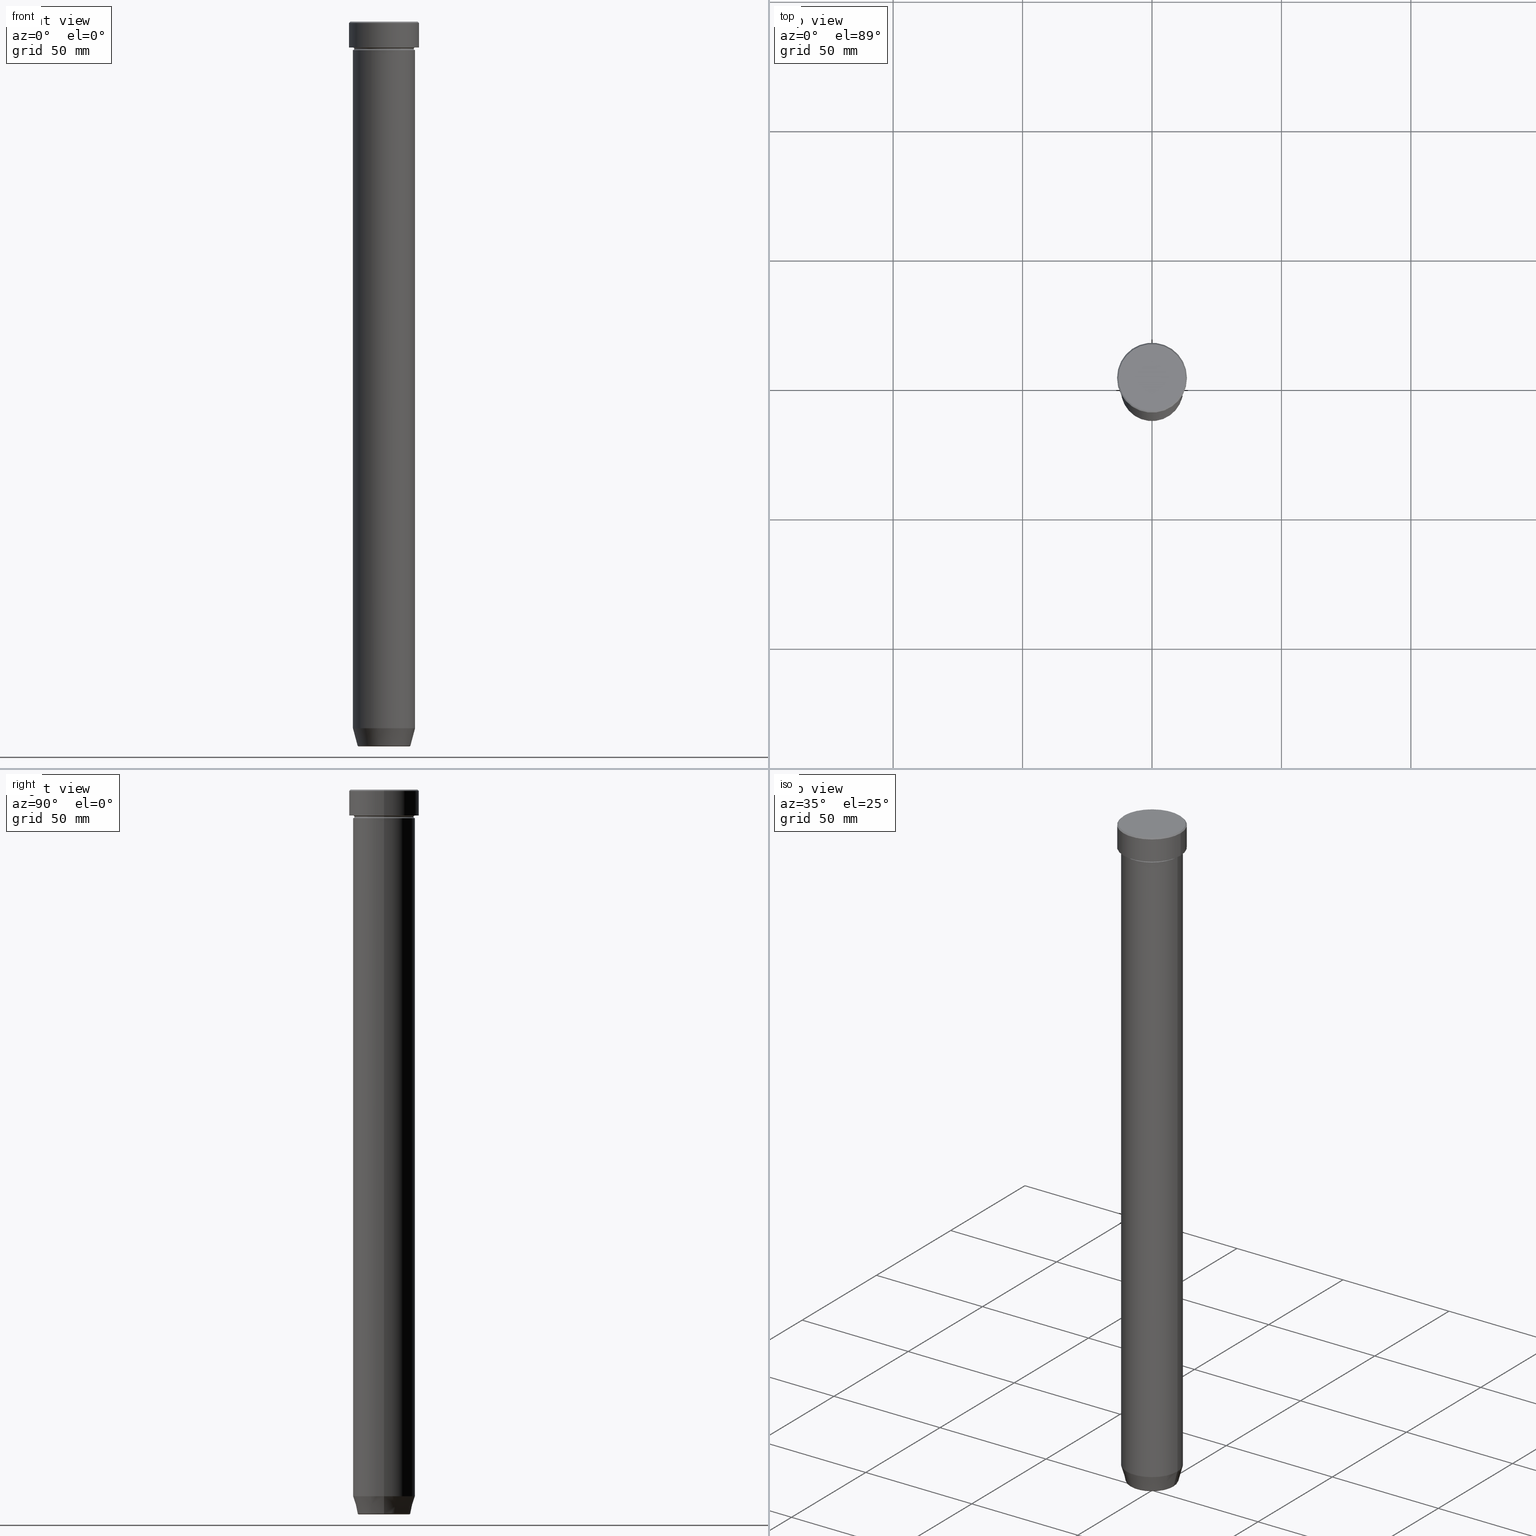
[diagram: canonical four-view strip — front | top / right | iso, engineering-drawing reading convention]
A machine part, canonical four-view strip (front | top / right | iso — engineering-drawing reading convention). The complete STEP part file that produces these views, byte-faithful:
ISO-10303-21;
HEADER;
FILE_DESCRIPTION (( 'STEP AP203' ),
    '1' );
FILE_NAME ('3b0b.STEP',
    '2024-01-02T17:40:30',
    ( '' ),
    ( '' ),
    'SwSTEP 2.0',
    'SolidWorks 2019',
    '' );
FILE_SCHEMA (( 'CONFIG_CONTROL_DESIGN' ));
ENDSEC;

DATA;
#1 = EDGE_LOOP ( 'NONE', ( #583, #493, #172, #308 ) ) ;
#2 = CARTESIAN_POINT ( 'NONE',  ( 12.00000000000000000, 1.469576158976823947E-15, -10.49999999999999822 ) ) ;
#3 = ORIENTED_EDGE ( 'NONE', *, *, #576, .F. ) ;
#4 = AXIS2_PLACEMENT_3D ( 'NONE', #484, #158, #570 ) ;
#5 = TOROIDAL_SURFACE ( 'NONE', #344, 12.00000000000000000, 0.5000000000000000000 ) ;
#6 = DIRECTION ( 'NONE',  ( 0.000000000000000000, 0.000000000000000000, -1.000000000000000000 ) ) ;
#7 = DIRECTION ( 'NONE',  ( 0.000000000000000000, 0.000000000000000000, -1.000000000000000000 ) ) ;
#8 = ADVANCED_FACE ( 'NONE', ( #339 ), #281, .F. ) ;
#9 = DATE_TIME_ROLE ( 'creation_date' ) ;
#10 = ORIENTED_EDGE ( 'NONE', *, *, #159, .F. ) ;
#11 = DIRECTION ( 'NONE',  ( 1.000000000000000000, 0.000000000000000000, 0.000000000000000000 ) ) ;
#12 = CC_DESIGN_PERSON_AND_ORGANIZATION_ASSIGNMENT ( #309, #490, ( #573 ) ) ;
#13 = VERTEX_POINT ( 'NONE', #552 ) ;
#14 = ORIENTED_EDGE ( 'NONE', *, *, #422, .T. ) ;
#15 = EDGE_CURVE ( 'NONE', #34, #284, #167, .T. ) ;
#16 = ORIENTED_EDGE ( 'NONE', *, *, #77, .F. ) ;
#17 = PERSON ( 'NEUR�EN�', 'NEUR�EN�', 'NEUR�EN�', ('NEUR�EN�'), ('NEUR�EN�'), ('NEUR�EN�') ) ;
#18 = DIRECTION ( 'NONE',  ( 1.000000000000000000, 0.000000000000000000, 0.000000000000000000 ) ) ;
#19 = DIRECTION ( 'NONE',  ( -0.000000000000000000, -0.000000000000000000, 1.000000000000000000 ) ) ;
#20 = DIRECTION ( 'NONE',  ( 0.000000000000000000, 0.000000000000000000, -1.000000000000000000 ) ) ;
#21 = DIRECTION ( 'NONE',  ( -0.000000000000000000, -0.000000000000000000, 1.000000000000000000 ) ) ;
#22 = PERSON_AND_ORGANIZATION ( #17, #175 ) ;
#23 = DIRECTION ( 'NONE',  ( -0.000000000000000000, -0.000000000000000000, 1.000000000000000000 ) ) ;
#24 = CARTESIAN_POINT ( 'NONE',  ( -12.00000000000000000, 1.469576158976823947E-15, -273.0000000000000000 ) ) ;
#25 = AXIS2_PLACEMENT_3D ( 'NONE', #390, #577, #491 ) ;
#26 = CIRCLE ( 'NONE', #162, 0.5000000000000004441 ) ;
#27 = EDGE_CURVE ( 'NONE', #131, #452, #485, .T. ) ;
#28 = FACE_OUTER_BOUND ( 'NONE', #272, .T. ) ;
#29 = CARTESIAN_POINT ( 'NONE',  ( 0.000000000000000000, 0.000000000000000000, 0.000000000000000000 ) ) ;
#30 = PERSON_AND_ORGANIZATION_ROLE ( 'design_supplier' ) ;
#31 = EDGE_CURVE ( 'NONE', #36, #127, #529, .T. ) ;
#32 = AXIS2_PLACEMENT_3D ( 'NONE', #292, #569, #193 ) ;
#33 = AXIS2_PLACEMENT_3D ( 'NONE', #256, #21, #435 ) ;
#34 = VERTEX_POINT ( 'NONE', #300 ) ;
#35 = PERSON_AND_ORGANIZATION ( #17, #175 ) ;
#36 = VERTEX_POINT ( 'NONE', #206 ) ;
#37 = CARTESIAN_POINT ( 'NONE',  ( 0.000000000000000000, 0.000000000000000000, -0.5000000000000091038 ) ) ;
#38 = ORIENTED_EDGE ( 'NONE', *, *, #139, .F. ) ;
#39 = COORDINATED_UNIVERSAL_TIME_OFFSET ( 1, 0, .AHEAD. ) ;
#40 = DIRECTION ( 'NONE',  ( 0.000000000000000000, 0.000000000000000000, -1.000000000000000000 ) ) ;
#41 = AXIS2_PLACEMENT_3D ( 'NONE', #303, #23, #389 ) ;
#42 = CC_DESIGN_APPROVAL ( #55, ( #394 ) ) ;
#43 = ORIENTED_EDGE ( 'NONE', *, *, #31, .T. ) ;
#44 = CARTESIAN_POINT ( 'NONE',  ( 0.000000000000000000, 0.000000000000000000, 0.000000000000000000 ) ) ;
#45 = VERTEX_POINT ( 'NONE', #341 ) ;
#46 = CYLINDRICAL_SURFACE ( 'NONE', #492, 12.00000000000000000 ) ;
#47 = ORIENTED_EDGE ( 'NONE', *, *, #360, .T. ) ;
#48 = EDGE_CURVE ( 'NONE', #462, #45, #276, .T. ) ;
#49 = CARTESIAN_POINT ( 'NONE',  ( 0.000000000000000000, 0.000000000000000000, 0.000000000000000000 ) ) ;
#50 = LINE ( 'NONE', #567, #560 ) ;
#51 = CARTESIAN_POINT ( 'NONE',  ( 0.000000000000000000, 2.816687638038912825E-14, -280.0000000000000000 ) ) ;
#52 = AXIS2_PLACEMENT_3D ( 'NONE', #149, #424, #333 ) ;
#53 = CC_DESIGN_APPROVAL ( #209, ( #573 ) ) ;
#54 = CARTESIAN_POINT ( 'NONE',  ( 0.000000000000000000, 0.000000000000000000, -10.49999999999999822 ) ) ;
#55 = APPROVAL ( #146, 'NEUR�EN�' ) ;
#56 = DIRECTION ( 'NONE',  ( -0.000000000000000000, -0.000000000000000000, 1.000000000000000000 ) ) ;
#57 = ORIENTED_EDGE ( 'NONE', *, *, #199, .T. ) ;
#58 = CARTESIAN_POINT ( 'NONE',  ( 0.000000000000000000, 0.000000000000000000, -27.00000000000000000 ) ) ;
#59 = CYLINDRICAL_SURFACE ( 'NONE', #32, 13.50000000000000000 ) ;
#60 = EDGE_CURVE ( 'NONE', #215, #587, #575, .T. ) ;
#61 = ORIENTED_EDGE ( 'NONE', *, *, #599, .T. ) ;
#62 = DIRECTION ( 'NONE',  ( 0.000000000000000000, 0.000000000000000000, -1.000000000000000000 ) ) ;
#63 = EDGE_LOOP ( 'NONE', ( #169, #351, #156, #326 ) ) ;
#64 = VECTOR ( 'NONE', #438, 1000.000000000000114 ) ;
#65 = DIRECTION ( 'NONE',  ( -1.000000000000000000, 0.000000000000000000, 0.000000000000000000 ) ) ;
#66 = APPLICATION_CONTEXT ( 'configuration controlled 3d designs of mechanical parts and assemblies' ) ;
#67 = AXIS2_PLACEMENT_3D ( 'NONE', #136, #596, #280 ) ;
#68 = FACE_OUTER_BOUND ( 'NONE', #240, .T. ) ;
#69 = CARTESIAN_POINT ( 'NONE',  ( 0.000000000000000000, 0.000000000000000000, -10.49999999999999822 ) ) ;
#70 = ADVANCED_FACE ( 'NONE', ( #203 ), #114, .T. ) ;
#71 = CARTESIAN_POINT ( 'NONE',  ( -13.50000000000000000, 1.653273178848926867E-15, 0.000000000000000000 ) ) ;
#72 = AXIS2_PLACEMENT_3D ( 'NONE', #37, #444, #507 ) ;
#73 = TOROIDAL_SURFACE ( 'NONE', #123, 9.740692158992656502, 0.5000000000000000000 ) ;
#74 = FACE_OUTER_BOUND ( 'NONE', #402, .T. ) ;
#75 = APPLICATION_CONTEXT ( 'configuration controlled 3d designs of mechanical parts and assemblies' ) ;
#76 = DIRECTION ( 'NONE',  ( 1.000000000000000000, 0.000000000000000000, 0.000000000000000000 ) ) ;
#77 = EDGE_CURVE ( 'NONE', #452, #135, #385, .T. ) ;
#78 = APPROVAL_DATE_TIME ( #404, #472 ) ;
#79 = EDGE_LOOP ( 'NONE', ( #427, #358, #125, #187 ) ) ;
#80 = PERSON_AND_ORGANIZATION_ROLE ( 'design_owner' ) ;
#81 = CIRCLE ( 'NONE', #25, 10.22365507213718416 ) ;
#82 = AXIS2_PLACEMENT_3D ( 'NONE', #2, #181, #365 ) ;
#83 = ORIENTED_EDGE ( 'NONE', *, *, #525, .T. ) ;
#84 = DIRECTION ( 'NONE',  ( 0.000000000000000000, 0.000000000000000000, 1.000000000000000000 ) ) ;
#85 = DIRECTION ( 'NONE',  ( -0.000000000000000000, -0.000000000000000000, 1.000000000000000000 ) ) ;
#86 = ORIENTED_EDGE ( 'NONE', *, *, #576, .T. ) ;
#87 = APPROVAL_STATUS ( 'not_yet_approved' ) ;
#88 = ADVANCED_FACE ( 'NONE', ( #481 ), #113, .T. ) ;
#89 = EDGE_LOOP ( 'NONE', ( #336, #14, #511, #489 ) ) ;
#90 = CARTESIAN_POINT ( 'NONE',  ( -12.00000000000000000, 1.469576158976823947E-15, 0.000000000000000000 ) ) ;
#91 = AXIS2_PLACEMENT_3D ( 'NONE', #524, #112, #338 ) ;
#92 = VECTOR ( 'NONE', #179, 1000.000000000000000 ) ;
#93 = VERTEX_POINT ( 'NONE', #478 ) ;
#94 = CARTESIAN_POINT ( 'NONE',  ( 12.00000000000000000, 0.000000000000000000, 0.000000000000000000 ) ) ;
#95 = EDGE_LOOP ( 'NONE', ( #16, #323, #57, #137 ) ) ;
#96 = EDGE_CURVE ( 'NONE', #587, #419, #152, .T. ) ;
#97 = CARTESIAN_POINT ( 'NONE',  ( 0.000000000000000000, 0.000000000000000000, -279.6294095225512706 ) ) ;
#98 = VERTEX_POINT ( 'NONE', #260 ) ;
#99 = DIRECTION ( 'NONE',  ( -0.000000000000000000, -0.000000000000000000, 1.000000000000000000 ) ) ;
#100 = DIRECTION ( 'NONE',  ( 1.000000000000000000, 0.000000000000000000, 0.000000000000000000 ) ) ;
#101 = ORIENTED_EDGE ( 'NONE', *, *, #468, .T. ) ;
#102 = CIRCLE ( 'NONE', #182, 13.50000000000000000 ) ;
#103 = CIRCLE ( 'NONE', #335, 0.5000000000000004441 ) ;
#104 = FACE_OUTER_BOUND ( 'NONE', #1, .T. ) ;
#105 = CALENDAR_DATE ( 2024, 2, 1 ) ;
#106 = VERTEX_POINT ( 'NONE', #304 ) ;
#107 = CARTESIAN_POINT ( 'NONE',  ( -11.50000000000000000, 1.438959988998139963E-15, -10.49999999999999822 ) ) ;
#108 = DIRECTION ( 'NONE',  ( 1.000000000000000000, 0.000000000000000000, 0.000000000000000000 ) ) ;
#109 = ADVANCED_FACE ( 'NONE', ( #28 ), #425, .F. ) ;
#110 = EDGE_LOOP ( 'NONE', ( #445, #320 ) ) ;
#111 = DIRECTION ( 'NONE',  ( 1.000000000000000000, 0.000000000000000000, 0.000000000000000000 ) ) ;
#112 = DIRECTION ( 'NONE',  ( -0.000000000000000000, -0.000000000000000000, 1.000000000000000000 ) ) ;
#113 = CYLINDRICAL_SURFACE ( 'NONE', #515, 13.50000000000000000 ) ;
#114 = CONICAL_SURFACE ( 'NONE', #4, 10.12435565298213369, 0.2617993877991502405 ) ;
#115 = AXIS2_PLACEMENT_3D ( 'NONE', #128, #173, #275 ) ;
#116 = SHAPE_DEFINITION_REPRESENTATION ( #446, #296 ) ;
#117 = DIRECTION ( 'NONE',  ( -0.000000000000000000, -0.000000000000000000, 1.000000000000000000 ) ) ;
#118 = EDGE_CURVE ( 'NONE', #362, #215, #581, .T. ) ;
#119 = CARTESIAN_POINT ( 'NONE',  ( 10.12435565298213369, 0.000000000000000000, -280.0000000000000000 ) ) ;
#120 = CC_DESIGN_PERSON_AND_ORGANIZATION_ASSIGNMENT ( #440, #30, ( #367 ) ) ;
#121 = CARTESIAN_POINT ( 'NONE',  ( -9.740692158992656502, 1.192890747399007864E-15, -279.5000000000000000 ) ) ;
#122 = VECTOR ( 'NONE', #117, 1000.000000000000000 ) ;
#123 = AXIS2_PLACEMENT_3D ( 'NONE', #561, #523, #111 ) ;
#124 = EDGE_CURVE ( 'NONE', #369, #419, #434, .T. ) ;
#125 = ORIENTED_EDGE ( 'NONE', *, *, #15, .F. ) ;
#126 = APPLICATION_PROTOCOL_DEFINITION ( 'international standard', 'config_control_design', 1994, #75 ) ;
#127 = VERTEX_POINT ( 'NONE', #436 ) ;
#128 = CARTESIAN_POINT ( 'NONE',  ( 0.000000000000000000, 0.000000000000000000, -9.999999999999998224 ) ) ;
#129 = AXIS2_PLACEMENT_3D ( 'NONE', #516, #329, #299 ) ;
#130 = CC_DESIGN_SECURITY_CLASSIFICATION ( #573, ( #367 ) ) ;
#131 = VERTEX_POINT ( 'NONE', #305 ) ;
#132 = DATE_AND_TIME ( #545, #257 ) ;
#133 = ADVANCED_FACE ( 'NONE', ( #74 ), #476, .T. ) ;
#134 = LINE ( 'NONE', #94, #92 ) ;
#135 = VERTEX_POINT ( 'NONE', #391 ) ;
#136 = CARTESIAN_POINT ( 'NONE',  ( 0.000000000000000000, 0.000000000000000000, -27.00000000000000000 ) ) ;
#137 = ORIENTED_EDGE ( 'NONE', *, *, #191, .T. ) ;
#138 = FACE_OUTER_BOUND ( 'NONE', #143, .T. ) ;
#139 = EDGE_CURVE ( 'NONE', #519, #362, #151, .T. ) ;
#140 = VECTOR ( 'NONE', #431, 1000.000000000000114 ) ;
#141 = AXIS2_PLACEMENT_3D ( 'NONE', #463, #553, #192 ) ;
#142 = ORIENTED_EDGE ( 'NONE', *, *, #96, .F. ) ;
#143 = EDGE_LOOP ( 'NONE', ( #364, #190, #194, #498 ) ) ;
#144 = CARTESIAN_POINT ( 'NONE',  ( 9.740692158992656502, 0.000000000000000000, -279.5000000000000000 ) ) ;
#145 = FACE_OUTER_BOUND ( 'NONE', #503, .T. ) ;
#146 = APPROVAL_STATUS ( 'not_yet_approved' ) ;
#147 = DIRECTION ( 'NONE',  ( 1.000000000000000000, 0.000000000000000000, 0.000000000000000000 ) ) ;
#148 = FACE_OUTER_BOUND ( 'NONE', #449, .T. ) ;
#149 = CARTESIAN_POINT ( 'NONE',  ( 0.000000000000000000, 0.000000000000000000, 0.000000000000000000 ) ) ;
#150 = ORIENTED_EDGE ( 'NONE', *, *, #360, .F. ) ;
#151 = CIRCLE ( 'NONE', #301, 9.740692158992656502 ) ;
#152 = CIRCLE ( 'NONE', #550, 12.00000000000000000 ) ;
#153 = CIRCLE ( 'NONE', #33, 12.00000000000000000 ) ;
#154 = ADVANCED_FACE ( 'NONE', ( #160 ), #204, .T. ) ;
#155 = FACE_OUTER_BOUND ( 'NONE', #184, .T. ) ;
#156 = ORIENTED_EDGE ( 'NONE', *, *, #401, .T. ) ;
#157 = CARTESIAN_POINT ( 'NONE',  ( -13.50000000000000000, 1.653273178848926867E-15, -10.00000000000000000 ) ) ;
#158 = DIRECTION ( 'NONE',  ( -0.000000000000000000, -0.000000000000000000, 1.000000000000000000 ) ) ;
#159 = EDGE_CURVE ( 'NONE', #354, #135, #197, .T. ) ;
#160 = FACE_OUTER_BOUND ( 'NONE', #374, .T. ) ;
#161 = CIRCLE ( 'NONE', #290, 12.99999999999999645 ) ;
#162 = AXIS2_PLACEMENT_3D ( 'NONE', #447, #406, #40 ) ;
#163 = DIRECTION ( 'NONE',  ( 0.7071067811865439090, 8.659560562354888485E-17, -0.7071067811865512365 ) ) ;
#164 = DIRECTION ( 'NONE',  ( 1.000000000000000000, 0.000000000000000000, 0.000000000000000000 ) ) ;
#165 = DIRECTION ( 'NONE',  ( 1.000000000000000000, 0.000000000000000000, 0.000000000000000000 ) ) ;
#166 = CARTESIAN_POINT ( 'NONE',  ( 0.000000000000000000, 0.000000000000000000, 0.000000000000000000 ) ) ;
#167 = CIRCLE ( 'NONE', #405, 12.00000000000000000 ) ;
#168 = LINE ( 'NONE', #536, #183 ) ;
#169 = ORIENTED_EDGE ( 'NONE', *, *, #411, .F. ) ;
#170 = CARTESIAN_POINT ( 'NONE',  ( 10.22365507213718416, 0.000000000000000000, -279.6294095225512706 ) ) ;
#171 = ADVANCED_FACE ( 'NONE', ( #287 ), #248, .T. ) ;
#172 = ORIENTED_EDGE ( 'NONE', *, *, #349, .T. ) ;
#173 = DIRECTION ( 'NONE',  ( -0.000000000000000000, -0.000000000000000000, 1.000000000000000000 ) ) ;
#174 = VECTOR ( 'NONE', #340, 1000.000000000000000 ) ;
#175 = ORGANIZATION ( 'NEUR�EN�', 'NEUR�EN�', '' ) ;
#176 = VERTEX_POINT ( 'NONE', #513 ) ;
#177 = ORIENTED_EDGE ( 'NONE', *, *, #327, .F. ) ;
#178 = EDGE_CURVE ( 'NONE', #215, #369, #483, .T. ) ;
#179 = DIRECTION ( 'NONE',  ( -0.000000000000000000, -0.000000000000000000, 1.000000000000000000 ) ) ;
#180 = ORIENTED_EDGE ( 'NONE', *, *, #547, .F. ) ;
#181 = DIRECTION ( 'NONE',  ( -1.224646799147353207E-16, 1.000000000000000000, 0.000000000000000000 ) ) ;
#182 = AXIS2_PLACEMENT_3D ( 'NONE', #418, #62, #242 ) ;
#183 = VECTOR ( 'NONE', #375, 1000.000000000000000 ) ;
#184 = EDGE_LOOP ( 'NONE', ( #377, #198, #457, #589 ) ) ;
#185 = DIRECTION ( 'NONE',  ( 1.000000000000000000, 0.000000000000000000, 0.000000000000000000 ) ) ;
#186 = CARTESIAN_POINT ( 'NONE',  ( -12.00000000000000000, 1.469576158976823947E-15, -11.00000000000000000 ) ) ;
#187 = ORIENTED_EDGE ( 'NONE', *, *, #368, .F. ) ;
#188 = CYLINDRICAL_SURFACE ( 'NONE', #386, 12.00000000000000000 ) ;
#189 = COORDINATED_UNIVERSAL_TIME_OFFSET ( 1, 0, .AHEAD. ) ;
#190 = ORIENTED_EDGE ( 'NONE', *, *, #411, .T. ) ;
#191 = EDGE_CURVE ( 'NONE', #127, #135, #102, .T. ) ;
#192 = DIRECTION ( 'NONE',  ( 1.000000000000000000, 0.000000000000000000, 0.000000000000000000 ) ) ;
#193 = DIRECTION ( 'NONE',  ( 1.000000000000000000, 0.000000000000000000, 0.000000000000000000 ) ) ;
#194 = ORIENTED_EDGE ( 'NONE', *, *, #468, .F. ) ;
#195 = APPROVAL_PERSON_ORGANIZATION ( #315, #472, #273 ) ;
#196 = DIRECTION ( 'NONE',  ( 0.000000000000000000, 0.000000000000000000, -1.000000000000000000 ) ) ;
#197 = LINE ( 'NONE', #379, #174 ) ;
#198 = ORIENTED_EDGE ( 'NONE', *, *, #422, .F. ) ;
#199 = EDGE_CURVE ( 'NONE', #131, #127, #50, .T. ) ;
#200 = CARTESIAN_POINT ( 'NONE',  ( 0.000000000000000000, 0.000000000000000000, -279.5000000000000000 ) ) ;
#201 = CARTESIAN_POINT ( 'NONE',  ( -10.12435565298213369, 1.239875974385398152E-15, -280.0000000000000000 ) ) ;
#202 = DIRECTION ( 'NONE',  ( 0.000000000000000000, 0.000000000000000000, -1.000000000000000000 ) ) ;
#203 = FACE_OUTER_BOUND ( 'NONE', #269, .T. ) ;
#204 = CONICAL_SURFACE ( 'NONE', #356, 10.12435565298213369, 0.2617993877991502405 ) ;
#205 = CARTESIAN_POINT ( 'NONE',  ( 0.000000000000000000, 0.000000000000000000, -27.00000000000000000 ) ) ;
#206 = CARTESIAN_POINT ( 'NONE',  ( 12.99999999999999645, 1.622657008870242882E-15, 0.000000000000000000 ) ) ;
#207 = DIRECTION ( 'NONE',  ( -1.000000000000000000, 0.000000000000000000, 0.000000000000000000 ) ) ;
#208 = EDGE_CURVE ( 'NONE', #462, #542, #334, .T. ) ;
#209 = APPROVAL ( #383, 'NEUR�EN�' ) ;
#210 = SECURITY_CLASSIFICATION_LEVEL ( 'unclassified' ) ;
#211 = AXIS2_PLACEMENT_3D ( 'NONE', #97, #371, #471 ) ;
#212 = CIRCLE ( 'NONE', #477, 12.00000000000000000 ) ;
#213 = ORIENTED_EDGE ( 'NONE', *, *, #118, .T. ) ;
#214 = CC_DESIGN_PERSON_AND_ORGANIZATION_ASSIGNMENT ( #495, #80, ( #586 ) ) ;
#215 = VERTEX_POINT ( 'NONE', #420 ) ;
#216 = DIRECTION ( 'NONE',  ( 1.000000000000000000, 0.000000000000000000, 0.000000000000000000 ) ) ;
#217 = DIRECTION ( 'NONE',  ( -0.000000000000000000, -0.000000000000000000, 1.000000000000000000 ) ) ;
#218 = ORIENTED_EDGE ( 'NONE', *, *, #432, .F. ) ;
#219 = CALENDAR_DATE ( 2024, 2, 1 ) ;
#220 = FACE_OUTER_BOUND ( 'NONE', #410, .T. ) ;
#221 = AXIS2_PLACEMENT_3D ( 'NONE', #29, #20, #207 ) ;
#222 = AXIS2_PLACEMENT_3D ( 'NONE', #450, #84, #216 ) ;
#223 = AXIS2_PLACEMENT_3D ( 'NONE', #388, #571, #18 ) ;
#224 = ORIENTED_EDGE ( 'NONE', *, *, #585, .F. ) ;
#225 = ADVANCED_FACE ( 'NONE', ( #563 ), #188, .T. ) ;
#226 = FACE_OUTER_BOUND ( 'NONE', #501, .T. ) ;
#227 = ORIENTED_EDGE ( 'NONE', *, *, #48, .T. ) ;
#228 = CARTESIAN_POINT ( 'NONE',  ( 0.000000000000000000, 0.000000000000000000, -10.49999999999999822 ) ) ;
#229 = DIRECTION ( 'NONE',  ( 1.000000000000000000, 0.000000000000000000, 0.000000000000000000 ) ) ;
#230 = DIRECTION ( 'NONE',  ( -0.000000000000000000, -0.000000000000000000, 1.000000000000000000 ) ) ;
#231 = FACE_OUTER_BOUND ( 'NONE', #254, .T. ) ;
#232 = AXIS2_PLACEMENT_3D ( 'NONE', #331, #514, #482 ) ;
#233 = COORDINATED_UNIVERSAL_TIME_OFFSET ( 1, 0, .AHEAD. ) ;
#234 = CC_DESIGN_APPROVAL ( #472, ( #367 ) ) ;
#235 = ORIENTED_EDGE ( 'NONE', *, *, #537, .T. ) ;
#236 = FACE_OUTER_BOUND ( 'NONE', #395, .T. ) ;
#237 = CARTESIAN_POINT ( 'NONE',  ( 0.000000000000000000, 0.000000000000000000, 0.000000000000000000 ) ) ;
#238 = EDGE_CURVE ( 'NONE', #419, #587, #441, .T. ) ;
#239 = DATE_TIME_ROLE ( 'classification_date' ) ;
#240 = EDGE_LOOP ( 'NONE', ( #291, #565, #538, #224 ) ) ;
#241 = PLANE ( 'NONE',  #141 ) ;
#242 = DIRECTION ( 'NONE',  ( 1.000000000000000000, 0.000000000000000000, 0.000000000000000000 ) ) ;
#243 = ORIENTED_EDGE ( 'NONE', *, *, #139, .T. ) ;
#244 = CARTESIAN_POINT ( 'NONE',  ( 0.000000000000000000, 0.000000000000000000, -27.00000000000000000 ) ) ;
#245 = EDGE_LOOP ( 'NONE', ( #442, #264 ) ) ;
#246 = VECTOR ( 'NONE', #217, 1000.000000000000000 ) ;
#247 = DIRECTION ( 'NONE',  ( 0.000000000000000000, 0.000000000000000000, -1.000000000000000000 ) ) ;
#248 = CYLINDRICAL_SURFACE ( 'NONE', #454, 12.00000000000000000 ) ;
#249 = DIRECTION ( 'NONE',  ( -1.000000000000000000, 0.000000000000000000, 0.000000000000000000 ) ) ;
#250 = DIRECTION ( 'NONE',  ( -1.000000000000000000, 1.224646799147353454E-16, 0.000000000000000000 ) ) ;
#251 = CARTESIAN_POINT ( 'NONE',  ( -12.00000000000000000, 1.469576158976823947E-15, -10.49999999999999822 ) ) ;
#252 = DIRECTION ( 'NONE',  ( 1.000000000000000000, 0.000000000000000000, 0.000000000000000000 ) ) ;
#253 = CLOSED_SHELL ( 'NONE', ( #502, #154, #346, #439, #171, #70, #8, #307 ) ) ;
#254 = EDGE_LOOP ( 'NONE', ( #597, #262, #408, #218 ) ) ;
#255 = AXIS2_PLACEMENT_3D ( 'NONE', #69, #345, #249 ) ;
#256 = CARTESIAN_POINT ( 'NONE',  ( 0.000000000000000000, 0.000000000000000000, -27.00000000000000000 ) ) ;
#257 = LOCAL_TIME ( 18, 40, 30.00000000000000000, #233 ) ;
#258 = DIRECTION ( 'NONE',  ( -0.000000000000000000, -0.000000000000000000, 1.000000000000000000 ) ) ;
#259 = ADVANCED_FACE ( 'NONE', ( #231 ), #306, .F. ) ;
#260 = CARTESIAN_POINT ( 'NONE',  ( 12.00000000000000000, 1.469576158976823947E-15, -9.999999999999998224 ) ) ;
#261 = CC_DESIGN_DATE_AND_TIME_ASSIGNMENT ( #433, #239, ( #573 ) ) ;
#262 = ORIENTED_EDGE ( 'NONE', *, *, #557, .T. ) ;
#263 = PERSON_AND_ORGANIZATION_ROLE ( 'creator' ) ;
#264 = ORIENTED_EDGE ( 'NONE', *, *, #384, .T. ) ;
#265 = COORDINATED_UNIVERSAL_TIME_OFFSET ( 1, 0, .AHEAD. ) ;
#266 = EDGE_CURVE ( 'NONE', #93, #106, #534, .T. ) ;
#267 = AXIS2_PLACEMENT_3D ( 'NONE', #325, #510, #283 ) ;
#268 = AXIS2_PLACEMENT_3D ( 'NONE', #512, #520, #332 ) ;
#269 = EDGE_LOOP ( 'NONE', ( #317, #508, #310, #142 ) ) ;
#270 = PERSON_AND_ORGANIZATION ( #17, #175 ) ;
#271 = DIRECTION ( 'NONE',  ( 0.000000000000000000, 0.000000000000000000, -1.000000000000000000 ) ) ;
#272 = EDGE_LOOP ( 'NONE', ( #227, #83, #298, #314 ) ) ;
#273 = APPROVAL_ROLE ( '' ) ;
#274 = ORIENTED_EDGE ( 'NONE', *, *, #31, .F. ) ;
#275 = DIRECTION ( 'NONE',  ( -1.000000000000000000, 0.000000000000000000, 0.000000000000000000 ) ) ;
#276 = CIRCLE ( 'NONE', #41, 11.50000000000000000 ) ;
#277 = APPROVAL_PERSON_ORGANIZATION ( #22, #209, #518 ) ;
#278 = PRODUCT_RELATED_PRODUCT_CATEGORY ( 'detail', '', ( #586 ) ) ;
#279 = ORIENTED_EDGE ( 'NONE', *, *, #537, .F. ) ;
#280 = DIRECTION ( 'NONE',  ( -1.000000000000000000, 0.000000000000000000, -0.000000000000000000 ) ) ;
#281 = PLANE ( 'NONE',  #403 ) ;
#282 = FACE_OUTER_BOUND ( 'NONE', #110, .T. ) ;
#283 = DIRECTION ( 'NONE',  ( 1.000000000000000000, 0.000000000000000000, 0.000000000000000000 ) ) ;
#284 = VERTEX_POINT ( 'NONE', #186 ) ;
#285 = ADVANCED_FACE ( 'NONE', ( #68 ), #521, .T. ) ;
#286 = DIRECTION ( 'NONE',  ( 1.000000000000000000, 0.000000000000000000, 0.000000000000000000 ) ) ;
#287 = FACE_OUTER_BOUND ( 'NONE', #63, .T. ) ;
#288 = AXIS2_PLACEMENT_3D ( 'NONE', #381, #258, #165 ) ;
#289 = CALENDAR_DATE ( 2024, 2, 1 ) ;
#290 = AXIS2_PLACEMENT_3D ( 'NONE', #44, #321, #500 ) ;
#291 = ORIENTED_EDGE ( 'NONE', *, *, #448, .F. ) ;
#292 = CARTESIAN_POINT ( 'NONE',  ( 0.000000000000000000, 0.000000000000000000, 0.000000000000000000 ) ) ;
#293 = APPROVAL_DATE_TIME ( #430, #209 ) ;
#294 = ORIENTED_EDGE ( 'NONE', *, *, #337, .T. ) ;
#295 = DIRECTION ( 'NONE',  ( -0.000000000000000000, -0.000000000000000000, 1.000000000000000000 ) ) ;
#296 = ADVANCED_BREP_SHAPE_REPRESENTATION ( '3b0b', ( #539, #352, #222 ), #302 ) ;
#297 = ADVANCED_FACE ( 'NONE', ( #104 ), #59, .T. ) ;
#298 = ORIENTED_EDGE ( 'NONE', *, *, #533, .F. ) ;
#299 = DIRECTION ( 'NONE',  ( 1.000000000000000000, 0.000000000000000000, 0.000000000000000000 ) ) ;
#300 = CARTESIAN_POINT ( 'NONE',  ( 12.00000000000000000, 0.000000000000000000, -11.00000000000000000 ) ) ;
#301 = AXIS2_PLACEMENT_3D ( 'NONE', #578, #380, #568 ) ;
#302 =( GEOMETRIC_REPRESENTATION_CONTEXT ( 3 ) GLOBAL_UNCERTAINTY_ASSIGNED_CONTEXT ( ( #598 ) ) GLOBAL_UNIT_ASSIGNED_CONTEXT ( ( #415, #555, #359 ) ) REPRESENTATION_CONTEXT ( 'NONE', 'WORKASPACE' ) );
#303 = CARTESIAN_POINT ( 'NONE',  ( 0.000000000000000000, 0.000000000000000000, -10.49999999999999822 ) ) ;
#304 = CARTESIAN_POINT ( 'NONE',  ( 12.00000000000000000, 0.000000000000000000, -27.00000000000000000 ) ) ;
#305 = CARTESIAN_POINT ( 'NONE',  ( 13.50000000000000000, 0.000000000000000000, -10.00000000000000000 ) ) ;
#306 = TOROIDAL_SURFACE ( 'NONE', #129, 12.00000000000000000, 0.5000000000000000000 ) ;
#307 = ADVANCED_FACE ( 'NONE', ( #145 ), #366, .T. ) ;
#308 = ORIENTED_EDGE ( 'NONE', *, *, #199, .F. ) ;
#309 = PERSON_AND_ORGANIZATION ( #17, #175 ) ;
#310 = ORIENTED_EDGE ( 'NONE', *, *, #124, .T. ) ;
#311 = AXIS2_PLACEMENT_3D ( 'NONE', #244, #373, #558 ) ;
#312 = CARTESIAN_POINT ( 'NONE',  ( 0.000000000000000000, 0.000000000000000000, 0.000000000000000000 ) ) ;
#313 = LOCAL_TIME ( 18, 40, 30.00000000000000000, #189 ) ;
#314 = ORIENTED_EDGE ( 'NONE', *, *, #208, .F. ) ;
#315 = PERSON_AND_ORGANIZATION ( #17, #175 ) ;
#316 = LINE ( 'NONE', #90, #246 ) ;
#317 = ORIENTED_EDGE ( 'NONE', *, *, #60, .F. ) ;
#318 = DIRECTION ( 'NONE',  ( 1.000000000000000000, 0.000000000000000000, 0.000000000000000000 ) ) ;
#319 = ADVANCED_FACE ( 'NONE', ( #155 ), #527, .F. ) ;
#320 = ORIENTED_EDGE ( 'NONE', *, *, #266, .F. ) ;
#321 = DIRECTION ( 'NONE',  ( -0.000000000000000000, -0.000000000000000000, 1.000000000000000000 ) ) ;
#322 = CIRCLE ( 'NONE', #595, 12.00000000000000000 ) ;
#323 = ORIENTED_EDGE ( 'NONE', *, *, #327, .T. ) ;
#324 = FACE_BOUND ( 'NONE', #245, .T. ) ;
#325 = CARTESIAN_POINT ( 'NONE',  ( 0.000000000000000000, 0.000000000000000000, -10.49999999999999822 ) ) ;
#326 = ORIENTED_EDGE ( 'NONE', *, *, #599, .F. ) ;
#327 = EDGE_CURVE ( 'NONE', #452, #131, #343, .T. ) ;
#328 = FACE_OUTER_BOUND ( 'NONE', #413, .T. ) ;
#329 = DIRECTION ( 'NONE',  ( -0.000000000000000000, -0.000000000000000000, 1.000000000000000000 ) ) ;
#330 = PERSON_AND_ORGANIZATION ( #17, #175 ) ;
#331 = CARTESIAN_POINT ( 'NONE',  ( 0.000000000000000000, 0.000000000000000000, -10.00000000000000000 ) ) ;
#332 = DIRECTION ( 'NONE',  ( -1.000000000000000000, 0.000000000000000000, -0.000000000000000000 ) ) ;
#333 = DIRECTION ( 'NONE',  ( 1.000000000000000000, 0.000000000000000000, 0.000000000000000000 ) ) ;
#334 = CIRCLE ( 'NONE', #505, 0.5000000000000004441 ) ;
#335 = AXIS2_PLACEMENT_3D ( 'NONE', #251, #480, #428 ) ;
#336 = ORIENTED_EDGE ( 'NONE', *, *, #525, .F. ) ;
#337 = EDGE_CURVE ( 'NONE', #369, #215, #81, .T. ) ;
#338 = DIRECTION ( 'NONE',  ( 1.000000000000000000, 0.000000000000000000, 0.000000000000000000 ) ) ;
#339 = FACE_OUTER_BOUND ( 'NONE', #548, .T. ) ;
#340 = DIRECTION ( 'NONE',  ( -0.7071067811865439090, 0.000000000000000000, -0.7071067811865512365 ) ) ;
#341 = CARTESIAN_POINT ( 'NONE',  ( 11.50000000000000000, 0.000000000000000000, -10.49999999999999822 ) ) ;
#342 = CARTESIAN_POINT ( 'NONE',  ( 0.000000000000000000, 0.000000000000000000, -280.0000000000000000 ) ) ;
#343 = CIRCLE ( 'NONE', #288, 13.50000000000000000 ) ;
#344 = AXIS2_PLACEMENT_3D ( 'NONE', #54, #196, #65 ) ;
#345 = DIRECTION ( 'NONE',  ( 0.000000000000000000, 0.000000000000000000, -1.000000000000000000 ) ) ;
#346 = ADVANCED_FACE ( 'NONE', ( #138 ), #46, .T. ) ;
#347 = DIRECTION ( 'NONE',  ( -0.000000000000000000, -0.000000000000000000, 1.000000000000000000 ) ) ;
#348 = CIRCLE ( 'NONE', #455, 12.99999999999999645 ) ;
#349 = EDGE_CURVE ( 'NONE', #135, #127, #437, .T. ) ;
#350 = PERSON_AND_ORGANIZATION_ROLE ( 'creator' ) ;
#351 = ORIENTED_EDGE ( 'NONE', *, *, #96, .T. ) ;
#352 = MANIFOLD_SOLID_BREP ( 'Zaoblit4', #253 ) ;
#353 = CARTESIAN_POINT ( 'NONE',  ( 0.000000000000000000, 0.000000000000000000, 0.000000000000000000 ) ) ;
#354 = VERTEX_POINT ( 'NONE', #397 ) ;
#355 = APPROVAL_DATE_TIME ( #453, #55 ) ;
#356 = AXIS2_PLACEMENT_3D ( 'NONE', #342, #475, #100 ) ;
#357 = AXIS2_PLACEMENT_3D ( 'NONE', #378, #6, #412 ) ;
#358 = ORIENTED_EDGE ( 'NONE', *, *, #448, .T. ) ;
#359 =( NAMED_UNIT ( * ) SI_UNIT ( $, .STERADIAN. ) SOLID_ANGLE_UNIT ( ) );
#360 = EDGE_CURVE ( 'NONE', #36, #354, #161, .T. ) ;
#361 = LINE ( 'NONE', #451, #528 ) ;
#362 = VERTEX_POINT ( 'NONE', #400 ) ;
#363 = CC_DESIGN_PERSON_AND_ORGANIZATION_ASSIGNMENT ( #35, #263, ( #367 ) ) ;
#364 = ORIENTED_EDGE ( 'NONE', *, *, #238, .T. ) ;
#365 = DIRECTION ( 'NONE',  ( -1.000000000000000000, -1.224646799147353454E-16, 0.000000000000000000 ) ) ;
#366 = TOROIDAL_SURFACE ( 'NONE', #541, 9.740692158992656502, 0.5000000000000000000 ) ;
#367 = PRODUCT_DEFINITION_FORMATION_WITH_SPECIFIED_SOURCE ( 'LIBOVOLN�', '', #586, .NOT_KNOWN. ) ;
#368 = EDGE_CURVE ( 'NONE', #106, #34, #361, .T. ) ;
#369 = VERTEX_POINT ( 'NONE', #170 ) ;
#370 = CARTESIAN_POINT ( 'NONE',  ( -12.00000000000000000, 0.000000000000000000, -9.999999999999998224 ) ) ;
#371 = DIRECTION ( 'NONE',  ( -0.000000000000000000, -0.000000000000000000, 1.000000000000000000 ) ) ;
#372 = DIRECTION ( 'NONE',  ( -0.000000000000000000, -0.000000000000000000, 1.000000000000000000 ) ) ;
#373 = DIRECTION ( 'NONE',  ( -0.000000000000000000, -0.000000000000000000, 1.000000000000000000 ) ) ;
#374 = EDGE_LOOP ( 'NONE', ( #294, #559, #594, #398 ) ) ;
#375 = DIRECTION ( 'NONE',  ( -0.000000000000000000, -0.000000000000000000, 1.000000000000000000 ) ) ;
#376 = AXIS2_PLACEMENT_3D ( 'NONE', #144, #531, #247 ) ;
#377 = ORIENTED_EDGE ( 'NONE', *, *, #557, .F. ) ;
#378 = CARTESIAN_POINT ( 'NONE',  ( 0.000000000000000000, 12.00000000000000000, -27.00000000000000000 ) ) ;
#379 = CARTESIAN_POINT ( 'NONE',  ( -12.99999999999999645, 0.000000000000000000, 0.000000000000000000 ) ) ;
#380 = DIRECTION ( 'NONE',  ( 0.000000000000000000, 0.000000000000000000, -1.000000000000000000 ) ) ;
#381 = CARTESIAN_POINT ( 'NONE',  ( 0.000000000000000000, 0.000000000000000000, -10.00000000000000000 ) ) ;
#382 = DIRECTION ( 'NONE',  ( 1.000000000000000000, 0.000000000000000000, 0.000000000000000000 ) ) ;
#383 = APPROVAL_STATUS ( 'not_yet_approved' ) ;
#384 = EDGE_CURVE ( 'NONE', #98, #542, #506, .T. ) ;
#385 = LINE ( 'NONE', #71, #122 ) ;
#386 = AXIS2_PLACEMENT_3D ( 'NONE', #461, #56, #11 ) ;
#387 = CONICAL_SURFACE ( 'NONE', #544, 12.99999999999999645, 0.7853981633974431720 ) ;
#388 = CARTESIAN_POINT ( 'NONE',  ( 0.000000000000000000, 0.000000000000000000, -11.00000000000000000 ) ) ;
#389 = DIRECTION ( 'NONE',  ( 1.000000000000000000, 0.000000000000000000, 0.000000000000000000 ) ) ;
#390 = CARTESIAN_POINT ( 'NONE',  ( 0.000000000000000000, 0.000000000000000000, -279.6294095225512706 ) ) ;
#391 = CARTESIAN_POINT ( 'NONE',  ( -13.50000000000000000, 1.653273178848926867E-15, -0.5000000000000091038 ) ) ;
#392 = ADVANCED_FACE ( 'NONE', ( #226 ), #387, .T. ) ;
#393 = CIRCLE ( 'NONE', #414, 9.740692158992656502 ) ;
#394 = PRODUCT_DEFINITION ( 'NEZN�M�', '', #367, #504 ) ;
#395 = EDGE_LOOP ( 'NONE', ( #235, #47 ) ) ;
#396 = COORDINATED_UNIVERSAL_TIME_OFFSET ( 1, 0, .AHEAD. ) ;
#397 = CARTESIAN_POINT ( 'NONE',  ( -12.99999999999999645, 0.000000000000000000, 0.000000000000000000 ) ) ;
#398 = ORIENTED_EDGE ( 'NONE', *, *, #124, .F. ) ;
#399 = MECHANICAL_CONTEXT ( 'NONE', #75, 'mechanical' ) ;
#400 = CARTESIAN_POINT ( 'NONE',  ( -9.740692158992656502, 1.222463696683474604E-15, -280.0000000000000000 ) ) ;
#401 = EDGE_CURVE ( 'NONE', #419, #176, #134, .T. ) ;
#402 = EDGE_LOOP ( 'NONE', ( #274, #279, #549, #546 ) ) ;
#403 = AXIS2_PLACEMENT_3D ( 'NONE', #51, #459, #229 ) ;
#404 = DATE_AND_TIME ( #219, #494 ) ;
#405 = AXIS2_PLACEMENT_3D ( 'NONE', #556, #372, #147 ) ;
#406 = DIRECTION ( 'NONE',  ( 0.000000000000000000, -1.000000000000000000, 0.000000000000000000 ) ) ;
#407 = CIRCLE ( 'NONE', #443, 12.00000000000000000 ) ;
#408 = ORIENTED_EDGE ( 'NONE', *, *, #585, .T. ) ;
#409 = DIRECTION ( 'NONE',  ( -1.000000000000000000, 0.000000000000000000, 0.000000000000000000 ) ) ;
#410 = EDGE_LOOP ( 'NONE', ( #101, #61 ) ) ;
#411 = EDGE_CURVE ( 'NONE', #587, #13, #316, .T. ) ;
#412 = DIRECTION ( 'NONE',  ( -1.000000000000000000, 0.000000000000000000, -0.000000000000000000 ) ) ;
#413 = EDGE_LOOP ( 'NONE', ( #522, #177 ) ) ;
#414 = AXIS2_PLACEMENT_3D ( 'NONE', #487, #202, #76 ) ;
#415 =( LENGTH_UNIT ( ) NAMED_UNIT ( * ) SI_UNIT ( .MILLI., .METRE. ) );
#416 = ORIENTED_EDGE ( 'NONE', *, *, #349, .F. ) ;
#417 = FACE_OUTER_BOUND ( 'NONE', #89, .T. ) ;
#418 = CARTESIAN_POINT ( 'NONE',  ( 0.000000000000000000, 0.000000000000000000, -0.5000000000000091038 ) ) ;
#419 = VERTEX_POINT ( 'NONE', #497 ) ;
#420 = CARTESIAN_POINT ( 'NONE',  ( -10.22365507213718416, 1.360806402472382153E-15, -279.6294095225512706 ) ) ;
#421 = ORIENTED_EDGE ( 'NONE', *, *, #547, .T. ) ;
#422 = EDGE_CURVE ( 'NONE', #45, #462, #582, .T. ) ;
#423 = PLANE ( 'NONE',  #268 ) ;
#424 = DIRECTION ( 'NONE',  ( -0.000000000000000000, -0.000000000000000000, 1.000000000000000000 ) ) ;
#425 = TOROIDAL_SURFACE ( 'NONE', #255, 12.00000000000000000, 0.5000000000000000000 ) ;
#426 = CIRCLE ( 'NONE', #223, 12.00000000000000000 ) ;
#427 = ORIENTED_EDGE ( 'NONE', *, *, #566, .T. ) ;
#428 = DIRECTION ( 'NONE',  ( -1.000000000000000000, 1.224646799147353454E-16, 0.000000000000000000 ) ) ;
#429 = DIRECTION ( 'NONE',  ( 1.000000000000000000, 0.000000000000000000, 0.000000000000000000 ) ) ;
#430 = DATE_AND_TIME ( #105, #313 ) ;
#431 = DIRECTION ( 'NONE',  ( 0.2588190451025214611, 0.000000000000000000, 0.9659258262890679791 ) ) ;
#432 = EDGE_CURVE ( 'NONE', #45, #34, #26, .T. ) ;
#433 = DATE_AND_TIME ( #289, #535 ) ;
#434 = LINE ( 'NONE', #119, #140 ) ;
#435 = DIRECTION ( 'NONE',  ( 1.000000000000000000, 0.000000000000000000, 0.000000000000000000 ) ) ;
#436 = CARTESIAN_POINT ( 'NONE',  ( 13.50000000000000000, 0.000000000000000000, -0.5000000000000091038 ) ) ;
#437 = CIRCLE ( 'NONE', #72, 13.50000000000000000 ) ;
#438 = DIRECTION ( 'NONE',  ( -0.2588190451025214611, 3.169619151431774186E-17, 0.9659258262890679791 ) ) ;
#439 = ADVANCED_FACE ( 'NONE', ( #220 ), #456, .F. ) ;
#440 = PERSON_AND_ORGANIZATION ( #17, #175 ) ;
#441 = CIRCLE ( 'NONE', #91, 12.00000000000000000 ) ;
#442 = ORIENTED_EDGE ( 'NONE', *, *, #533, .T. ) ;
#443 = AXIS2_PLACEMENT_3D ( 'NONE', #58, #99, #286 ) ;
#444 = DIRECTION ( 'NONE',  ( 0.000000000000000000, 0.000000000000000000, -1.000000000000000000 ) ) ;
#445 = ORIENTED_EDGE ( 'NONE', *, *, #566, .F. ) ;
#446 = PRODUCT_DEFINITION_SHAPE ( 'NONE', 'NONE',  #394 ) ;
#447 = CARTESIAN_POINT ( 'NONE',  ( 12.00000000000000000, 0.000000000000000000, -10.49999999999999822 ) ) ;
#448 = EDGE_CURVE ( 'NONE', #93, #284, #168, .T. ) ;
#449 = EDGE_LOOP ( 'NONE', ( #3, #213, #473, #180 ) ) ;
#450 = CARTESIAN_POINT ( 'NONE',  ( 0.000000000000000000, 0.000000000000000000, 0.000000000000000000 ) ) ;
#451 = CARTESIAN_POINT ( 'NONE',  ( 12.00000000000000000, 0.000000000000000000, 0.000000000000000000 ) ) ;
#452 = VERTEX_POINT ( 'NONE', #157 ) ;
#453 = DATE_AND_TIME ( #590, #562 ) ;
#454 = AXIS2_PLACEMENT_3D ( 'NONE', #237, #295, #429 ) ;
#455 = AXIS2_PLACEMENT_3D ( 'NONE', #49, #230, #185 ) ;
#456 = PLANE ( 'NONE',  #67 ) ;
#457 = ORIENTED_EDGE ( 'NONE', *, *, #432, .T. ) ;
#458 = ADVANCED_FACE ( 'NONE', ( #324, #328 ), #423, .T. ) ;
#459 = DIRECTION ( 'NONE',  ( 0.000000000000000000, -0.000000000000000000, 1.000000000000000000 ) ) ;
#460 = DIRECTION ( 'NONE',  ( -1.000000000000000000, 0.000000000000000000, 0.000000000000000000 ) ) ;
#461 = CARTESIAN_POINT ( 'NONE',  ( 0.000000000000000000, 0.000000000000000000, 0.000000000000000000 ) ) ;
#462 = VERTEX_POINT ( 'NONE', #107 ) ;
#463 = CARTESIAN_POINT ( 'NONE',  ( 0.000000000000000000, 0.000000000000000000, 0.000000000000000000 ) ) ;
#464 = CARTESIAN_POINT ( 'NONE',  ( -12.00000000000000000, 0.000000000000000000, -10.49999999999999822 ) ) ;
#465 = CIRCLE ( 'NONE', #376, 0.5000000000000004441 ) ;
#466 = ORIENTED_EDGE ( 'NONE', *, *, #178, .F. ) ;
#467 = DIRECTION ( 'NONE',  ( -0.000000000000000000, -1.000000000000000000, -0.000000000000000000 ) ) ;
#468 = EDGE_CURVE ( 'NONE', #176, #13, #407, .T. ) ;
#469 = ORIENTED_EDGE ( 'NONE', *, *, #118, .F. ) ;
#470 = PLANE ( 'NONE',  #357 ) ;
#471 = DIRECTION ( 'NONE',  ( -1.000000000000000000, 0.000000000000000000, 0.000000000000000000 ) ) ;
#472 = APPROVAL ( #87, 'NEUR�EN�' ) ;
#473 = ORIENTED_EDGE ( 'NONE', *, *, #337, .F. ) ;
#474 = CARTESIAN_POINT ( 'NONE',  ( 9.740692158992656502, 0.000000000000000000, -280.0000000000000000 ) ) ;
#475 = DIRECTION ( 'NONE',  ( -0.000000000000000000, -0.000000000000000000, 1.000000000000000000 ) ) ;
#476 = CONICAL_SURFACE ( 'NONE', #221, 12.99999999999999645, 0.7853981633974431720 ) ;
#477 = AXIS2_PLACEMENT_3D ( 'NONE', #205, #580, #164 ) ;
#478 = CARTESIAN_POINT ( 'NONE',  ( -12.00000000000000000, 1.469576158976823947E-15, -27.00000000000000000 ) ) ;
#479 = ADVANCED_FACE ( 'NONE', ( #417 ), #5, .F. ) ;
#480 = DIRECTION ( 'NONE',  ( 1.224646799147353207E-16, 1.000000000000000000, 0.000000000000000000 ) ) ;
#481 = FACE_OUTER_BOUND ( 'NONE', #95, .T. ) ;
#482 = DIRECTION ( 'NONE',  ( 1.000000000000000000, 0.000000000000000000, 0.000000000000000000 ) ) ;
#483 = CIRCLE ( 'NONE', #211, 10.22365507213718416 ) ;
#484 = CARTESIAN_POINT ( 'NONE',  ( 0.000000000000000000, 0.000000000000000000, -280.0000000000000000 ) ) ;
#485 = CIRCLE ( 'NONE', #232, 13.50000000000000000 ) ;
#486 = CIRCLE ( 'NONE', #82, 0.5000000000000004441 ) ;
#487 = CARTESIAN_POINT ( 'NONE',  ( 0.000000000000000000, 0.000000000000000000, -280.0000000000000000 ) ) ;
#488 = ADVANCED_FACE ( 'NONE', ( #282 ), #470, .T. ) ;
#489 = ORIENTED_EDGE ( 'NONE', *, *, #384, .F. ) ;
#490 = PERSON_AND_ORGANIZATION_ROLE ( 'classification_officer' ) ;
#491 = DIRECTION ( 'NONE',  ( -1.000000000000000000, 0.000000000000000000, 0.000000000000000000 ) ) ;
#492 = AXIS2_PLACEMENT_3D ( 'NONE', #353, #540, #591 ) ;
#493 = ORIENTED_EDGE ( 'NONE', *, *, #77, .T. ) ;
#494 = LOCAL_TIME ( 18, 40, 30.00000000000000000, #39 ) ;
#495 = PERSON_AND_ORGANIZATION ( #17, #175 ) ;
#496 = ADVANCED_FACE ( 'NONE', ( #236 ), #241, .T. ) ;
#497 = CARTESIAN_POINT ( 'NONE',  ( 12.00000000000000000, 0.000000000000000000, -273.0000000000000000 ) ) ;
#498 = ORIENTED_EDGE ( 'NONE', *, *, #401, .F. ) ;
#499 = APPROVAL_ROLE ( '' ) ;
#500 = DIRECTION ( 'NONE',  ( 1.000000000000000000, 0.000000000000000000, 0.000000000000000000 ) ) ;
#501 = EDGE_LOOP ( 'NONE', ( #150, #43, #416, #10 ) ) ;
#502 = ADVANCED_FACE ( 'NONE', ( #148 ), #73, .T. ) ;
#503 = EDGE_LOOP ( 'NONE', ( #469, #38, #421, #466 ) ) ;
#504 = DESIGN_CONTEXT ( 'detailed design', #66, 'design' ) ;
#505 = AXIS2_PLACEMENT_3D ( 'NONE', #464, #467, #7 ) ;
#506 = CIRCLE ( 'NONE', #115, 12.00000000000000000 ) ;
#507 = DIRECTION ( 'NONE',  ( 1.000000000000000000, 0.000000000000000000, 0.000000000000000000 ) ) ;
#508 = ORIENTED_EDGE ( 'NONE', *, *, #178, .T. ) ;
#509 = DIRECTION ( 'NONE',  ( -0.000000000000000000, -0.000000000000000000, 1.000000000000000000 ) ) ;
#510 = DIRECTION ( 'NONE',  ( -0.000000000000000000, -0.000000000000000000, 1.000000000000000000 ) ) ;
#511 = ORIENTED_EDGE ( 'NONE', *, *, #208, .T. ) ;
#512 = CARTESIAN_POINT ( 'NONE',  ( 0.000000000000000000, 13.50000000000000000, -9.999999999999998224 ) ) ;
#513 = CARTESIAN_POINT ( 'NONE',  ( 12.00000000000000000, 0.000000000000000000, -27.00000000000000000 ) ) ;
#514 = DIRECTION ( 'NONE',  ( -0.000000000000000000, -0.000000000000000000, 1.000000000000000000 ) ) ;
#515 = AXIS2_PLACEMENT_3D ( 'NONE', #166, #347, #382 ) ;
#516 = CARTESIAN_POINT ( 'NONE',  ( 0.000000000000000000, 0.000000000000000000, -10.49999999999999822 ) ) ;
#517 = APPROVAL_PERSON_ORGANIZATION ( #270, #55, #499 ) ;
#518 = APPROVAL_ROLE ( '' ) ;
#519 = VERTEX_POINT ( 'NONE', #474 ) ;
#520 = DIRECTION ( 'NONE',  ( 0.000000000000000000, 0.000000000000000000, -1.000000000000000000 ) ) ;
#521 = CYLINDRICAL_SURFACE ( 'NONE', #52, 12.00000000000000000 ) ;
#522 = ORIENTED_EDGE ( 'NONE', *, *, #27, .F. ) ;
#523 = DIRECTION ( 'NONE',  ( -0.000000000000000000, -0.000000000000000000, 1.000000000000000000 ) ) ;
#524 = CARTESIAN_POINT ( 'NONE',  ( 0.000000000000000000, 0.000000000000000000, -273.0000000000000000 ) ) ;
#525 = EDGE_CURVE ( 'NONE', #45, #98, #486, .T. ) ;
#526 = CARTESIAN_POINT ( 'NONE',  ( 12.99999999999999645, 1.592040838891558701E-15, 0.000000000000000000 ) ) ;
#527 = TOROIDAL_SURFACE ( 'NONE', #267, 12.00000000000000000, 0.5000000000000000000 ) ;
#528 = VECTOR ( 'NONE', #588, 1000.000000000000000 ) ;
#529 = LINE ( 'NONE', #526, #572 ) ;
#530 = DIRECTION ( 'NONE',  ( 1.224646799147353207E-16, 1.000000000000000000, 0.000000000000000000 ) ) ;
#531 = DIRECTION ( 'NONE',  ( 0.000000000000000000, -1.000000000000000000, 0.000000000000000000 ) ) ;
#532 = DIRECTION ( 'NONE',  ( -0.000000000000000000, -0.000000000000000000, 1.000000000000000000 ) ) ;
#533 = EDGE_CURVE ( 'NONE', #542, #98, #322, .T. ) ;
#534 = CIRCLE ( 'NONE', #311, 12.00000000000000000 ) ;
#535 = LOCAL_TIME ( 18, 40, 30.00000000000000000, #396 ) ;
#536 = CARTESIAN_POINT ( 'NONE',  ( -12.00000000000000000, 1.469576158976823947E-15, 0.000000000000000000 ) ) ;
#537 = EDGE_CURVE ( 'NONE', #354, #36, #348, .T. ) ;
#538 = ORIENTED_EDGE ( 'NONE', *, *, #368, .T. ) ;
#539 = MANIFOLD_SOLID_BREP ( 'Zkosen�1', #592 ) ;
#540 = DIRECTION ( 'NONE',  ( -0.000000000000000000, -0.000000000000000000, 1.000000000000000000 ) ) ;
#541 = AXIS2_PLACEMENT_3D ( 'NONE', #200, #554, #108 ) ;
#542 = VERTEX_POINT ( 'NONE', #370 ) ;
#543 = CC_DESIGN_PERSON_AND_ORGANIZATION_ASSIGNMENT ( #330, #350, ( #394 ) ) ;
#544 = AXIS2_PLACEMENT_3D ( 'NONE', #312, #271, #409 ) ;
#545 = CALENDAR_DATE ( 2024, 2, 1 ) ;
#546 = ORIENTED_EDGE ( 'NONE', *, *, #191, .F. ) ;
#547 = EDGE_CURVE ( 'NONE', #519, #369, #465, .T. ) ;
#548 = EDGE_LOOP ( 'NONE', ( #243, #86 ) ) ;
#549 = ORIENTED_EDGE ( 'NONE', *, *, #159, .T. ) ;
#550 = AXIS2_PLACEMENT_3D ( 'NONE', #574, #532, #252 ) ;
#551 = CARTESIAN_POINT ( 'NONE',  ( 0.000000000000000000, 0.000000000000000000, -9.999999999999998224 ) ) ;
#552 = CARTESIAN_POINT ( 'NONE',  ( -12.00000000000000000, 1.469576158976823947E-15, -27.00000000000000000 ) ) ;
#553 = DIRECTION ( 'NONE',  ( 0.000000000000000000, -0.000000000000000000, 1.000000000000000000 ) ) ;
#554 = DIRECTION ( 'NONE',  ( -0.000000000000000000, -0.000000000000000000, 1.000000000000000000 ) ) ;
#555 =( NAMED_UNIT ( * ) PLANE_ANGLE_UNIT ( ) SI_UNIT ( $, .RADIAN. ) );
#556 = CARTESIAN_POINT ( 'NONE',  ( 0.000000000000000000, 0.000000000000000000, -11.00000000000000000 ) ) ;
#557 = EDGE_CURVE ( 'NONE', #462, #284, #103, .T. ) ;
#558 = DIRECTION ( 'NONE',  ( 1.000000000000000000, 0.000000000000000000, 0.000000000000000000 ) ) ;
#559 = ORIENTED_EDGE ( 'NONE', *, *, #60, .T. ) ;
#560 = VECTOR ( 'NONE', #19, 1000.000000000000000 ) ;
#561 = CARTESIAN_POINT ( 'NONE',  ( 0.000000000000000000, 0.000000000000000000, -279.5000000000000000 ) ) ;
#562 = LOCAL_TIME ( 18, 40, 30.00000000000000000, #265 ) ;
#563 = FACE_OUTER_BOUND ( 'NONE', #79, .T. ) ;
#564 = AXIS2_PLACEMENT_3D ( 'NONE', #228, #85, #318 ) ;
#565 = ORIENTED_EDGE ( 'NONE', *, *, #266, .T. ) ;
#566 = EDGE_CURVE ( 'NONE', #106, #93, #153, .T. ) ;
#567 = CARTESIAN_POINT ( 'NONE',  ( 13.50000000000000000, 0.000000000000000000, 0.000000000000000000 ) ) ;
#568 = DIRECTION ( 'NONE',  ( 1.000000000000000000, 0.000000000000000000, 0.000000000000000000 ) ) ;
#569 = DIRECTION ( 'NONE',  ( -0.000000000000000000, -0.000000000000000000, 1.000000000000000000 ) ) ;
#570 = DIRECTION ( 'NONE',  ( 1.000000000000000000, 0.000000000000000000, 0.000000000000000000 ) ) ;
#571 = DIRECTION ( 'NONE',  ( -0.000000000000000000, -0.000000000000000000, 1.000000000000000000 ) ) ;
#572 = VECTOR ( 'NONE', #163, 1000.000000000000000 ) ;
#573 = SECURITY_CLASSIFICATION ( '', '', #210 ) ;
#574 = CARTESIAN_POINT ( 'NONE',  ( 0.000000000000000000, 0.000000000000000000, -273.0000000000000000 ) ) ;
#575 = LINE ( 'NONE', #201, #64 ) ;
#576 = EDGE_CURVE ( 'NONE', #362, #519, #393, .T. ) ;
#577 = DIRECTION ( 'NONE',  ( -0.000000000000000000, -0.000000000000000000, 1.000000000000000000 ) ) ;
#578 = CARTESIAN_POINT ( 'NONE',  ( 0.000000000000000000, 0.000000000000000000, -280.0000000000000000 ) ) ;
#579 = CC_DESIGN_DATE_AND_TIME_ASSIGNMENT ( #132, #9, ( #394 ) ) ;
#580 = DIRECTION ( 'NONE',  ( -0.000000000000000000, -0.000000000000000000, 1.000000000000000000 ) ) ;
#581 = CIRCLE ( 'NONE', #593, 0.5000000000000004441 ) ;
#582 = CIRCLE ( 'NONE', #564, 11.50000000000000000 ) ;
#583 = ORIENTED_EDGE ( 'NONE', *, *, #27, .T. ) ;
#584 = APPLICATION_PROTOCOL_DEFINITION ( 'international standard', 'config_control_design', 1994, #66 ) ;
#585 = EDGE_CURVE ( 'NONE', #284, #34, #426, .T. ) ;
#586 = PRODUCT ( '3b0b', '3b0b', '', ( #399 ) ) ;
#587 = VERTEX_POINT ( 'NONE', #24 ) ;
#588 = DIRECTION ( 'NONE',  ( -0.000000000000000000, -0.000000000000000000, 1.000000000000000000 ) ) ;
#589 = ORIENTED_EDGE ( 'NONE', *, *, #15, .T. ) ;
#590 = CALENDAR_DATE ( 2024, 2, 1 ) ;
#591 = DIRECTION ( 'NONE',  ( 1.000000000000000000, 0.000000000000000000, 0.000000000000000000 ) ) ;
#592 = CLOSED_SHELL ( 'NONE', ( #392, #109, #259, #225, #297, #488, #496, #88, #458, #285, #319, #479, #133 ) ) ;
#593 = AXIS2_PLACEMENT_3D ( 'NONE', #121, #530, #250 ) ;
#594 = ORIENTED_EDGE ( 'NONE', *, *, #238, .F. ) ;
#595 = AXIS2_PLACEMENT_3D ( 'NONE', #551, #509, #460 ) ;
#596 = DIRECTION ( 'NONE',  ( 0.000000000000000000, 0.000000000000000000, -1.000000000000000000 ) ) ;
#597 = ORIENTED_EDGE ( 'NONE', *, *, #48, .F. ) ;
#598 = UNCERTAINTY_MEASURE_WITH_UNIT (LENGTH_MEASURE( 1.000000000000000082E-05 ), #415, 'distance_accuracy_value', 'NONE');
#599 = EDGE_CURVE ( 'NONE', #13, #176, #212, .T. ) ;
ENDSEC;
END-ISO-10303-21;
